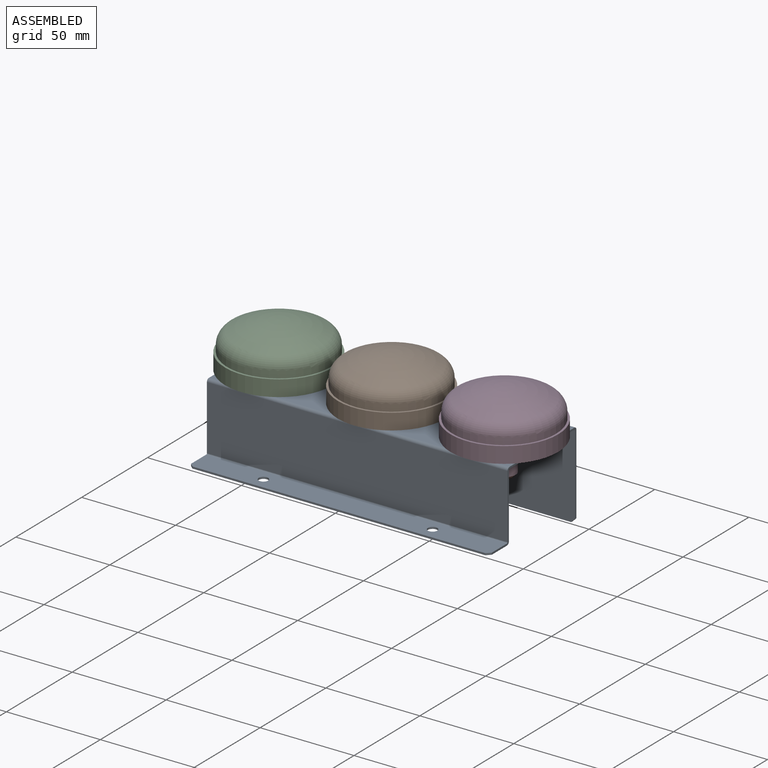
[diagram: assembled view]
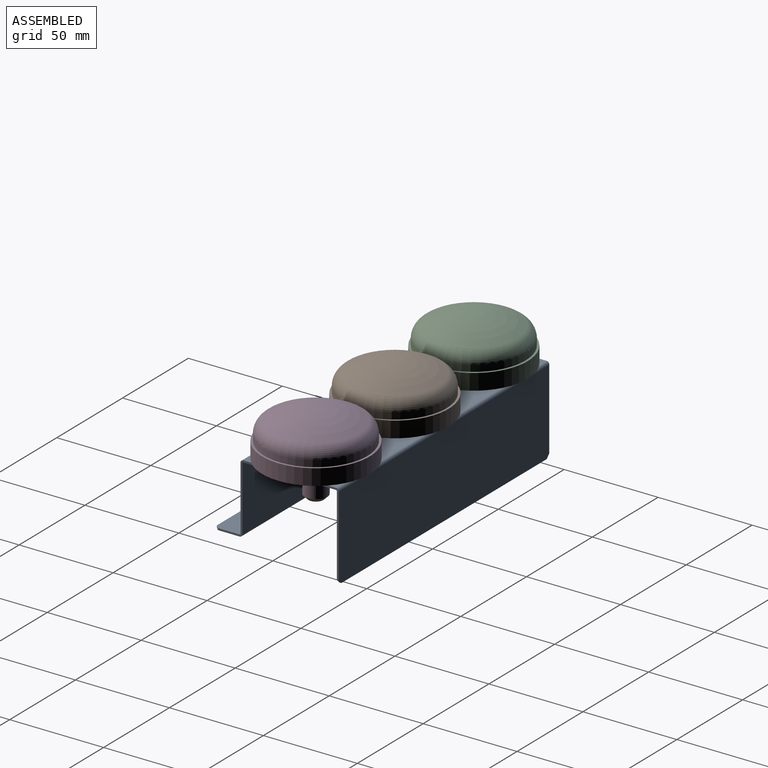
[diagram: assembled view, second angle]
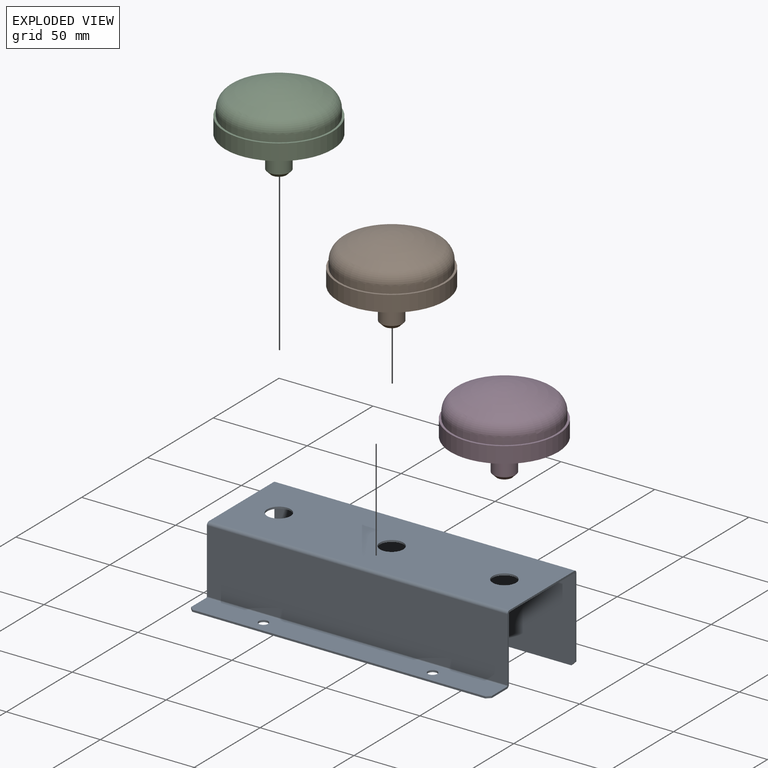
[diagram: exploded view]
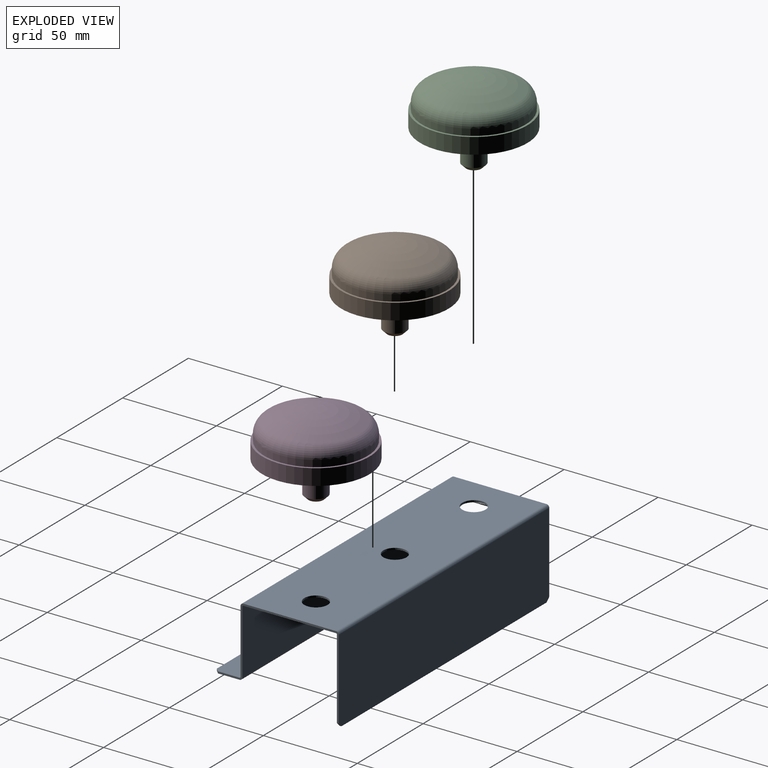
[diagram: exploded view, second angle]
ASSEMBLY  parts=4 mates=3
PART A: 39 faces, bbox 160x66.3x46.1 mm
  f0: plane 49.29x1mm, normal (1,0,0), area 49.3mm2, adj f5,f6,f25,f36
  f1: plane 49.29x1mm, normal (-1,0,0), area 49.3mm2, adj f5,f6,f24,f35
  f2: cylinder r=6.2mm len=12.4mm, axis (0,0,1), area 39mm2, adj f5,f6
  f3: cylinder r=6.2mm len=12.4mm, axis (0,0,1), area 39mm2, adj f5,f6
  f4: cylinder r=6.2mm len=12.4mm, axis (0,0,1), area 39mm2, adj f5,f6
  f5: plane 160x49.29mm, normal (0,0,1), area 7524.6mm2, adj f0,f1,f2,f3,f4,f26,f37
  f6: plane 160x49.29mm, normal (0,0,-1), area 7524.6mm2, adj f0,f1,f2,f3,f4,f27,f38
  f7: plane 34.15x1mm, normal (1,0,0), area 34.1mm2, adj f9,f10,f21,f25
  f8: plane 34.15x1mm, normal (-1,0,0), area 34.1mm2, adj f9,f10,f20,f24
  f9: plane 160x34.15mm, normal (0,-1,0), area 5463.4mm2, adj f7,f8,f23,f26
  f10: plane 160x34.15mm, normal (0,1,0), area 5463.4mm2, adj f7,f8,f22,f27
  f11: plane 156x1mm, normal (0,-1,0), area 156mm2, adj f16,f17,f18,f19
  f12: plane 11.5x1mm, normal (1,0,0), area 11.5mm2, adj f16,f17,f18,f21
  f13: cylinder r=2.5mm len=5mm, axis (0,0,1), area 15.7mm2, adj f16,f17
  f14: cylinder r=2.5mm len=5mm, axis (0,0,1), area 15.7mm2, adj f16,f17
  f15: plane 11.5x1mm, normal (-1,0,0), area 11.5mm2, adj f16,f17,f19,f20
  f16: plane 160x13.5mm, normal (0,0,1), area 2116.7mm2, adj f11,f12,f13,f14,f15,f18,f19,f23
  f17: plane 160x13.5mm, normal (0,0,-1), area 2116.7mm2, adj f11,f12,f13,f14,f15,f18,f19,f22
  f18: plane 2x2mm, normal (0.71,-0.71,0), area 2.8mm2, adj f11,f12,f16,f17
  f19: plane 2x2mm, normal (-0.71,-0.71,0), area 2.8mm2, adj f11,f15,f16,f17
  f20: plane 1.5x1.5mm, normal (-1,0,0), area 1.6mm2, adj f8,f15,f22,f23
  f21: plane 1.5x1.5mm, normal (1,0,0), area 1.6mm2, adj f7,f12,f22,f23
  f22: cylinder r=1.5mm len=160mm, axis (-1,0,0), area 377mm2, adj f10,f17,f20,f21
  f23: cylinder r=0.5mm len=160mm, axis (-1,0,0), area 125.7mm2, adj f9,f16,f20,f21
  f24: plane 1.5x1.5mm, normal (-1,0,0), area 1.6mm2, adj f1,f8,f26,f27
  f25: plane 1.5x1.5mm, normal (1,0,0), area 1.6mm2, adj f0,f7,f26,f27
  f26: cylinder r=1.5mm len=160mm, axis (-1,0,0), area 377mm2, adj f5,f9,f24,f25
  f27: cylinder r=0.5mm len=160mm, axis (-1,0,0), area 125.7mm2, adj f6,f10,f24,f25
  f28: plane 42.65x1mm, normal (1,0,0), area 42.6mm2, adj f31,f32,f33,f36
  f29: plane 156x1mm, normal (0,0,-1), area 156mm2, adj f31,f32,f33,f34
  f30: plane 42.65x1mm, normal (-1,0,0), area 42.6mm2, adj f31,f32,f34,f35
  f31: plane 160x44.65mm, normal (0,1,0), area 7139.4mm2, adj f28,f29,f30,f33,f34,f37
  f32: plane 160x44.65mm, normal (0,-1,0), area 7139.4mm2, adj f28,f29,f30,f33,f34,f38
  f33: plane 2x2mm, normal (0.71,0,-0.71), area 2.8mm2, adj f28,f29,f31,f32
  f34: plane 2x2mm, normal (-0.71,0,-0.71), area 2.8mm2, adj f29,f30,f31,f32
  f35: plane 1.5x1.5mm, normal (-1,0,0), area 1.6mm2, adj f1,f30,f37,f38
  f36: plane 1.5x1.5mm, normal (1,0,0), area 1.6mm2, adj f0,f28,f37,f38
  f37: cylinder r=1.5mm len=160mm, axis (-1,0,0), area 377mm2, adj f5,f31,f35,f36
  f38: cylinder r=0.5mm len=160mm, axis (-1,0,0), area 125.7mm2, adj f6,f32,f35,f36
PART B: 9 faces, bbox 59.5x59.5x43 mm
  f0: cylinder r=6mm len=17mm, axis (0,0,1), area 640.9mm2, adj f7,f8
  f1: plane 8x8mm, normal (0,0,-1), area 50.3mm2, adj f8
  f2: sphere r=51.14mm, area 1879.8mm2, adj f3
  f3: torus R=20.5mm, axis (0,0,1), area 1253.4mm2, adj f2,f4
  f4: cylinder r=27.5mm len=55mm, axis (0,0,1), area 600.3mm2, adj f3,f5
  f5: plane 57.22x57.22mm, normal (0,0,1), area 195.7mm2, adj f4,f6
  f6: cylinder r=28.61mm len=57.22mm, axis (0,0,1), area 1528mm2, adj f5,f7
  f7: plane 57.22x57.22mm, normal (0,0,-1), area 2458.4mm2, adj f0,f6
  f8: cone r=6mm half-angle=45deg, axis (0,0,1), area 88.9mm2, adj f0,f1
PART C: same geometry as B
PART D: same geometry as B
PLACE A at identity fixed
PLACE B t=(0,0,23.65)mm
PLACE C t=(-60,0,23.65)mm
PLACE D t=(60,0,23.65)mm
MATE fastened B.f0 <-> A.f3  axis (0,0,1) through (0,0,23.65)mm
MATE fastened C.f0 <-> A.f4  axis (0,0,-1) through (-60,0,23.65)mm
MATE fastened D.f0 <-> A.f2  axis (0,0,1) through (60,0,23.65)mm
